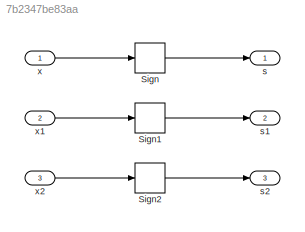
MODEL slx_7b2347be83aa
KIND model
CONFIG AbsTol = auto
CONFIG EnableMultiTasking = on
CONFIG FixedStep = 0.100000
CONFIG MaxStep = auto
CONFIG MinStep = auto
CONFIG RelTol = 1e-3
CONFIG SampleTimeConstraint = Unconstrained
CONFIG Solver = FixedStepDiscrete
CONFIG SolverName = FixedStepDiscrete
CONFIG StartTime = 0.0
CONFIG StopTime = 10.0
WORKSPACE source: MAT-file member
WORKSPACE already_pp = 0
BLOCK [Signum] Sign
BLOCK [Signum] Sign1
BLOCK [Signum] Sign2
BLOCK [Outport] s
  IconDisplay = Port number
BLOCK [Outport] s1
  IconDisplay = Port number
  Port = 2
BLOCK [Outport] s2
  IconDisplay = Port number
  Port = 3
BLOCK [Inport] x
  IconDisplay = Port number
  OutDataTypeStr = int8
  PortDimensions = 3
  SampleTime = 0
BLOCK [Inport] x1
  IconDisplay = Port number
  OutDataTypeStr = double
  Port = 2
  PortDimensions = 3
  SampleTime = 0
BLOCK [Inport] x2
  IconDisplay = Port number
  OutDataTypeStr = boolean
  Port = 3
  PortDimensions = 3
  SampleTime = 0
LINE Sign1:1 -> s1:1
LINE Sign2:1 -> s2:1
LINE Sign:1 -> s:1
LINE x1:1 -> Sign1:1
LINE x2:1 -> Sign2:1
LINE x:1 -> Sign:1
